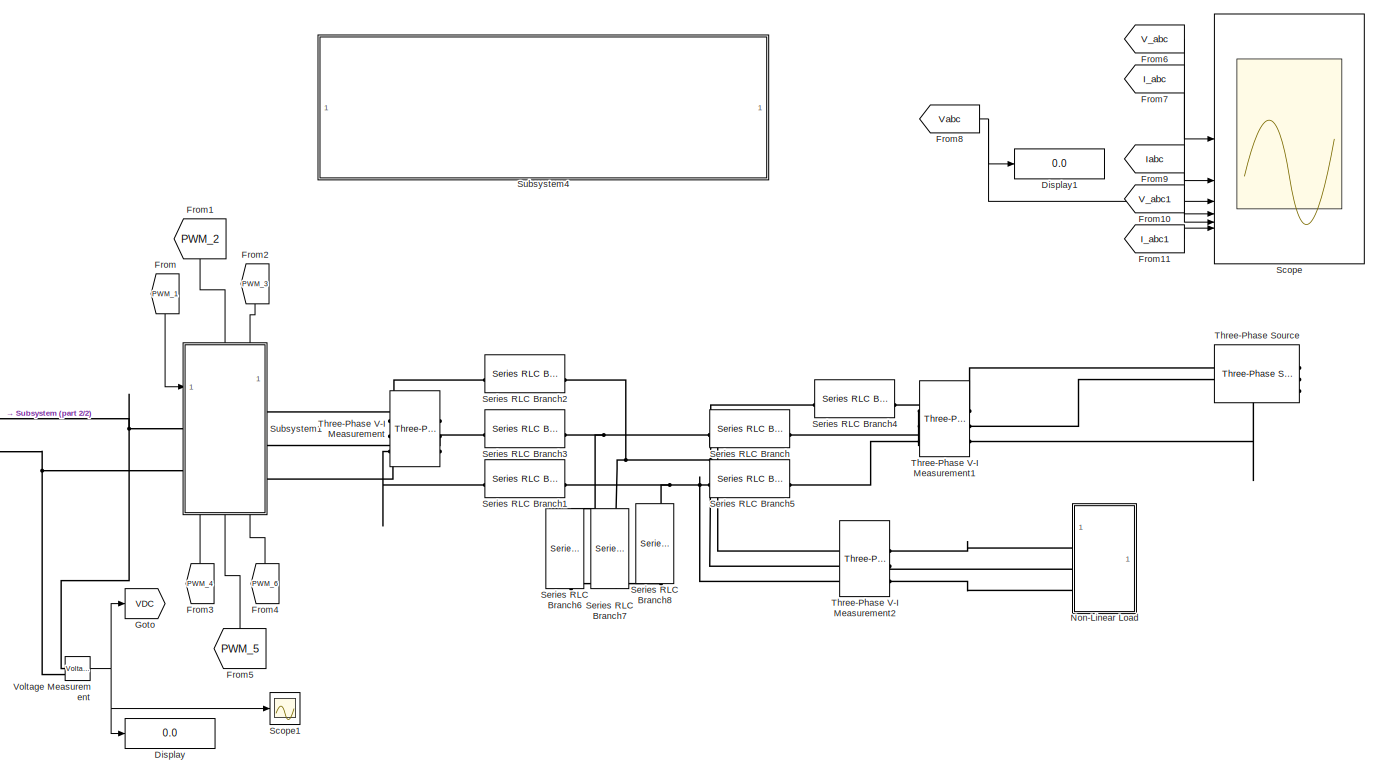
[diagram: root canvas - part 1/2, most of the canvas]
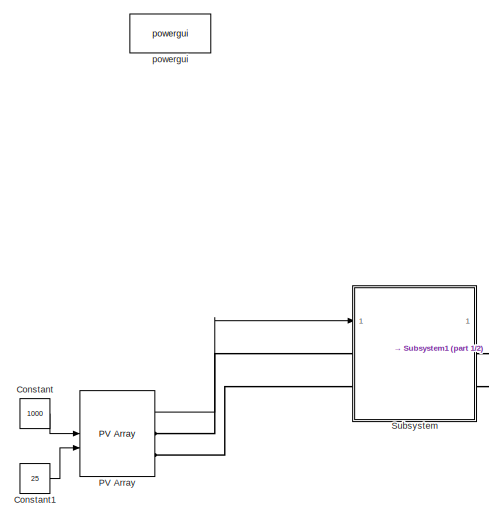
[diagram: root canvas - part 2/2, middle left region]
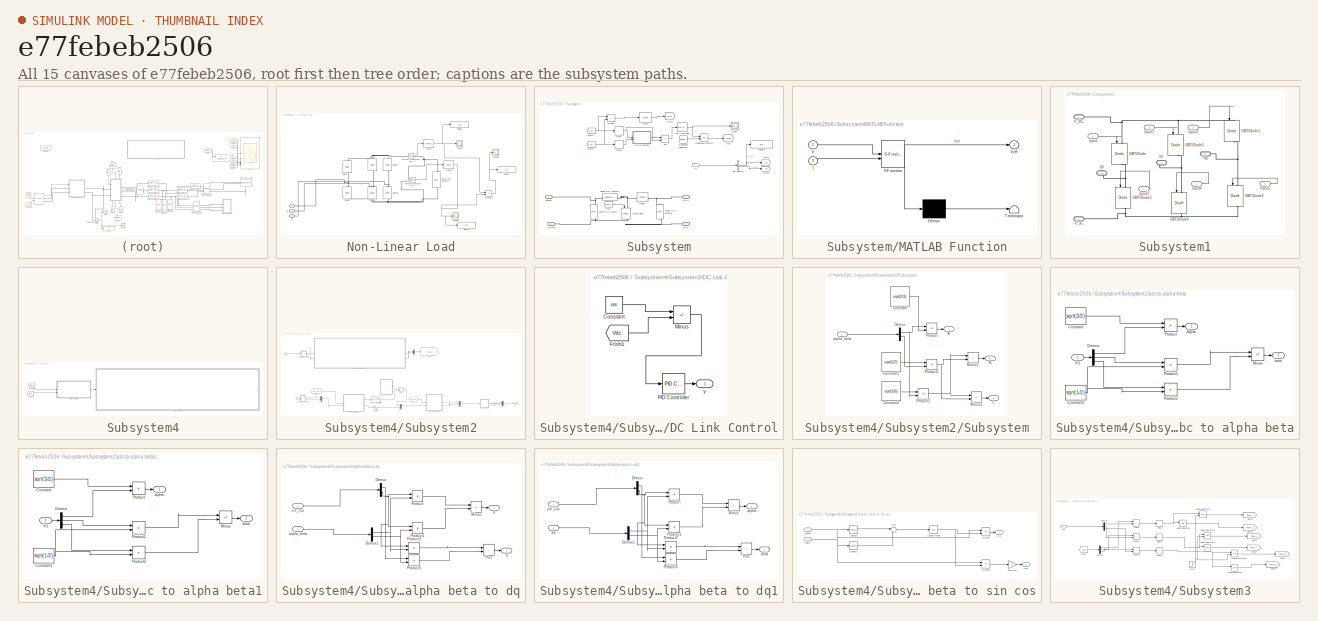
[diagram: thumbnail index - all 15 canvases of the model, root first then tree order]
MODEL slx_e77febeb2506
KIND model
CONFIG AbsTol = auto
CONFIG EnableMultiTasking = off
CONFIG FixedStep = auto
CONFIG MaxStep = auto
CONFIG MinStep = auto
CONFIG RelTol = 1e-3
CONFIG SampleTimeConstraint = Unconstrained
CONFIG SolverName = VariableStepAuto
CONFIG StartTime = 0.0
CONFIG StopTime = 1
BLOCK [Constant] Constant
  Value = 1000
BLOCK [Constant] Constant1
  Value = 25
BLOCK [Display] Display
  Decimation = 1
BLOCK [Display] Display1
  Decimation = 1
BLOCK [From] From
  GotoTag = PWM_1
  NameLocation = left
BLOCK [From] From1
  GotoTag = PWM_2
  NameLocation = left
BLOCK [From] From10
  GotoTag = V_abc1
  TagVisibility = global
BLOCK [From] From11
  GotoTag = I_abc1
  TagVisibility = global
BLOCK [From] From2
  GotoTag = PWM_3
  NameLocation = left
BLOCK [From] From3
  GotoTag = PWM_4
  NameLocation = right
BLOCK [From] From4
  GotoTag = PWM_6
  NameLocation = right
BLOCK [From] From5
  GotoTag = PWM_5
  NameLocation = right
BLOCK [From] From6
  GotoTag = V_abc
  TagVisibility = global
BLOCK [From] From7
  GotoTag = I_abc
  TagVisibility = global
BLOCK [From] From8
  GotoTag = Vabc
  TagVisibility = global
BLOCK [From] From9
  GotoTag = Iabc
  TagVisibility = global
BLOCK [Goto] Goto
  GotoTag = VDC
BLOCK [SubSystem] Non-Linear Load
BLOCK [Reference] Non-Linear Load/Current Measurement  REF=spsCurrentMeasurementLib/Current Measurement
  LibrarySourceBlock = sps_lib/Sensors and Measurements/Current Measurement
  SourceBlock = spsCurrentMeasurementLib/Current Measurement
  SourceType = Current Measurement
  UserDataPersistent = on
BLOCK [Reference] Non-Linear Load/Diode  REF=spsDiodeLib/Diode
  LibrarySourceBlock = sps_lib/Power Electronics/Diode
  NameLocation = right
  SourceBlock = spsDiodeLib/Diode
  SourceType = Diode
BLOCK [Reference] Non-Linear Load/Diode1  REF=spsDiodeLib/Diode
  LibrarySourceBlock = sps_lib/Power Electronics/Diode
  NameLocation = right
  SourceBlock = spsDiodeLib/Diode
  SourceType = Diode
BLOCK [Reference] Non-Linear Load/Diode2  REF=spsDiodeLib/Diode
  LibrarySourceBlock = sps_lib/Power Electronics/Diode
  NameLocation = right
  SourceBlock = spsDiodeLib/Diode
  SourceType = Diode
BLOCK [Reference] Non-Linear Load/Diode3  REF=spsDiodeLib/Diode
  LibrarySourceBlock = sps_lib/Power Electronics/Diode
  NameLocation = right
  SourceBlock = spsDiodeLib/Diode
  SourceType = Diode
BLOCK [Reference] Non-Linear Load/Diode4  REF=spsDiodeLib/Diode
  LibrarySourceBlock = sps_lib/Power Electronics/Diode
  NameLocation = right
  SourceBlock = spsDiodeLib/Diode
  SourceType = Diode
BLOCK [Reference] Non-Linear Load/Diode5  REF=spsDiodeLib/Diode
  LibrarySourceBlock = sps_lib/Power Electronics/Diode
  NameLocation = right
  SourceBlock = spsDiodeLib/Diode
  SourceType = Diode
BLOCK [Display] Non-Linear Load/Display
  Decimation = 1
BLOCK [Display] Non-Linear Load/Display1
  Decimation = 1
BLOCK [Display] Non-Linear Load/Display2
  Decimation = 1
BLOCK [Reference] Non-Linear Load/Mean  REF=spsMeanLib/Mean
  LibrarySourceBlock = sps_lib/Sensors and Measurements/Mean
  SourceBlock = spsMeanLib/Mean
  SourceType = Mean
BLOCK [Reference] Non-Linear Load/Mean1  REF=spsMeanLib/Mean
  LibrarySourceBlock = sps_lib/Sensors and Measurements/Mean
  SourceBlock = spsMeanLib/Mean
  SourceType = Mean
BLOCK [Product] Non-Linear Load/Product1
BLOCK [Scope] Non-Linear Load/Scope
  Floating = off
  NumInputPorts = 1
  ScopeSpecificationString = Simulink.scopes.TimeScopeBlockCfg('CurrentConfiguration', extmgr.ConfigurationSet(extmgr.Configuration('Core','General UI',true),extmgr.Configuration('Core','Source UI',true),extmgr.Configuration('Sources','WiredSimulink',true),extmgr.Configuration('Visuals','Time Domain',true),extmgr.Configuration('Tools','Plot Navigation',true),extmgr.Configuration('Tools','Measurements',true)),'Version','2024a'...<+1ch>
BLOCK [Scope] Non-Linear Load/Scope1
  Floating = off
  NumInputPorts = 1
  ScopeSpecificationString = Simulink.scopes.TimeScopeBlockCfg('CurrentConfiguration', extmgr.ConfigurationSet(extmgr.Configuration('Core','General UI',true),extmgr.Configuration('Core','Source UI',true),extmgr.Configuration('Sources','WiredSimulink',true,'DataLoggingVariableName','ScopeData1'),extmgr.Configuration('Visuals','Time Domain',true),extmgr.Configuration('Tools','Plot Navigation',true),extmgr.Configuration('Tools',...<+40ch>
BLOCK [Scope] Non-Linear Load/Scope2
  Floating = off
  NumInputPorts = 1
  ScopeSpecificationString = Simulink.scopes.TimeScopeBlockCfg('CurrentConfiguration', extmgr.ConfigurationSet(extmgr.Configuration('Core','General UI',true),extmgr.Configuration('Core','Source UI',true),extmgr.Configuration('Sources','WiredSimulink',true,'DataLoggingVariableName','ScopeData2'),extmgr.Configuration('Visuals','Time Domain',true),extmgr.Configuration('Tools','Plot Navigation',true),extmgr.Configuration('Tools',...<+40ch>
BLOCK [Reference] Non-Linear Load/Series RLC Branch9  REF=spsSeriesRLCBranchLib/Series RLC Branch
  LibrarySourceBlock = sps_lib/Passives/Series RLC Branch
  NameLocation = left
  SourceBlock = spsSeriesRLCBranchLib/Series RLC Branch
  SourceType = Series RLC Branch
BLOCK [Reference] Non-Linear Load/Voltage Measurement1  REF=spsVoltageMeasurementLib/Voltage Measurement
  LibrarySourceBlock = sps_lib/Sensors and Measurements/Voltage Measurement
  SourceBlock = spsVoltageMeasurementLib/Voltage Measurement
  SourceType = Voltage Measurement
  UserDataPersistent = on
BLOCK [PMIOPort] Non-Linear Load/a
  Side = Left
BLOCK [PMIOPort] Non-Linear Load/a1
  Port = 2
  Side = Left
BLOCK [PMIOPort] Non-Linear Load/a2
  Port = 3
  Side = Left
BLOCK [Reference] PV Array  REF=spsPVArrayLib/PV Array
  LibrarySourceBlock = sps_lib/Sources/PV Array
  SourceBlock = spsPVArrayLib/PV Array
  SourceType = PV array
BLOCK [Scope] Scope
  Floating = off
  NumInputPorts = 6
  ScopeSpecificationString = Simulink.scopes.TimeScopeBlockCfg('CurrentConfiguration', extmgr.ConfigurationSet(extmgr.Configuration('Core','General UI',true),extmgr.Configuration('Core','Source UI',true),extmgr.Configuration('Sources','WiredSimulink',true,'DataLoggingVariableName','ScopeData1'),extmgr.Configuration('Visuals','Time Domain',true,'SerializedDisplays',{struct('MinYLimReal','-0.00015','MaxYLimReal','0.00015','YLab...<+5670ch>
BLOCK [Scope] Scope1
  Floating = off
  NumInputPorts = 1
  ScopeSpecificationString = Simulink.scopes.TimeScopeBlockCfg('CurrentConfiguration', extmgr.ConfigurationSet(extmgr.Configuration('Core','General UI',true),extmgr.Configuration('Core','Source UI',true),extmgr.Configuration('Sources','WiredSimulink',true,'DataLoggingVariableName','ScopeData2'),extmgr.Configuration('Visuals','Time Domain',true,'SerializedDisplays',{struct('MinYLimReal','-777.48501','MaxYLimReal','6997.36512',...<+1539ch>
BLOCK [Reference] Series RLC Branch  REF=spsSeriesRLCBranchLib/Series RLC Branch
  LibrarySourceBlock = sps_lib/Passives/Series RLC Branch
  SourceBlock = spsSeriesRLCBranchLib/Series RLC Branch
  SourceType = Series RLC Branch
BLOCK [Reference] Series RLC Branch1  REF=spsSeriesRLCBranchLib/Series RLC Branch
  LibrarySourceBlock = sps_lib/Passives/Series RLC Branch
  SourceBlock = spsSeriesRLCBranchLib/Series RLC Branch
  SourceType = Series RLC Branch
BLOCK [Reference] Series RLC Branch2  REF=spsSeriesRLCBranchLib/Series RLC Branch
  LibrarySourceBlock = sps_lib/Passives/Series RLC Branch
  SourceBlock = spsSeriesRLCBranchLib/Series RLC Branch
  SourceType = Series RLC Branch
BLOCK [Reference] Series RLC Branch3  REF=spsSeriesRLCBranchLib/Series RLC Branch
  LibrarySourceBlock = sps_lib/Passives/Series RLC Branch
  SourceBlock = spsSeriesRLCBranchLib/Series RLC Branch
  SourceType = Series RLC Branch
BLOCK [Reference] Series RLC Branch4  REF=spsSeriesRLCBranchLib/Series RLC Branch
  LibrarySourceBlock = sps_lib/Passives/Series RLC Branch
  SourceBlock = spsSeriesRLCBranchLib/Series RLC Branch
  SourceType = Series RLC Branch
BLOCK [Reference] Series RLC Branch5  REF=spsSeriesRLCBranchLib/Series RLC Branch
  LibrarySourceBlock = sps_lib/Passives/Series RLC Branch
  SourceBlock = spsSeriesRLCBranchLib/Series RLC Branch
  SourceType = Series RLC Branch
BLOCK [Reference] Series RLC Branch6  REF=spsSeriesRLCBranchLib/Series RLC Branch
  LibrarySourceBlock = sps_lib/Passives/Series RLC Branch
  NameLocation = left
  SourceBlock = spsSeriesRLCBranchLib/Series RLC Branch
  SourceType = Series RLC Branch
BLOCK [Reference] Series RLC Branch7  REF=spsSeriesRLCBranchLib/Series RLC Branch
  LibrarySourceBlock = sps_lib/Passives/Series RLC Branch
  NameLocation = left
  SourceBlock = spsSeriesRLCBranchLib/Series RLC Branch
  SourceType = Series RLC Branch
BLOCK [Reference] Series RLC Branch8  REF=spsSeriesRLCBranchLib/Series RLC Branch
  LibrarySourceBlock = sps_lib/Passives/Series RLC Branch
  NameLocation = left
  SourceBlock = spsSeriesRLCBranchLib/Series RLC Branch
  SourceType = Series RLC Branch
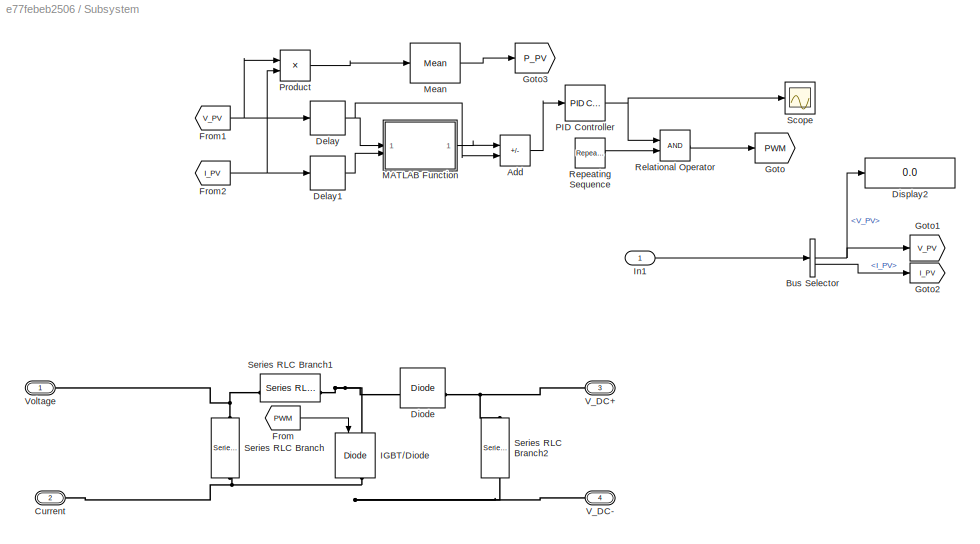
BLOCK [SubSystem] Subsystem
BLOCK [Sum] Subsystem/Add
  IconShape = rectangular
  Inputs = -+
BLOCK [BusSelector] Subsystem/Bus Selector
  OutputSignals = V_PV,I_PV
BLOCK [PMIOPort] Subsystem/Current
  Port = 2
  Side = Left
BLOCK [Delay] Subsystem/Delay
  DelayLength = 1
  InitialCondition = 0
  InputPortMap = u0
BLOCK [Delay] Subsystem/Delay1
  DelayLength = 1
  InitialCondition = 0
  InputPortMap = u0
BLOCK [Reference] Subsystem/Diode  REF=spsDiodeLib/Diode
  LibrarySourceBlock = sps_lib/Power Electronics/Diode
  SourceBlock = spsDiodeLib/Diode
  SourceType = Diode
BLOCK [Display] Subsystem/Display2
  Decimation = 1
  NameLocation = top
BLOCK [From] Subsystem/From
  GotoTag = PWM
BLOCK [From] Subsystem/From1
  GotoTag = V_PV
BLOCK [From] Subsystem/From2
  GotoTag = I_PV
BLOCK [Goto] Subsystem/Goto
  GotoTag = PWM
BLOCK [Goto] Subsystem/Goto1
  GotoTag = V_PV
BLOCK [Goto] Subsystem/Goto2
  GotoTag = I_PV
BLOCK [Goto] Subsystem/Goto3
  GotoTag = P_PV
BLOCK [Reference] Subsystem/IGBT//Diode  REF=spsIGBTDiodeLib/IGBT//Diode
  LibrarySourceBlock = sps_lib/Power Electronics/IGBT//Diode
  NameLocation = left
  SourceBlock = spsIGBTDiodeLib/IGBT//Diode
  SourceType = IGBT/Diode
BLOCK [Inport] Subsystem/In1
BLOCK [SubSystem] Subsystem/MATLAB Function
  ErrorFcn = Stateflow.Translate.translate
  PermitHierarchicalResolution = ExplicitOnly
  SFBlockType = MATLAB Function
  TreatAsAtomicUnit = on
BLOCK [Demux] Subsystem/MATLAB Function/ Demux 
  Outputs = 1
BLOCK [S-Function] Subsystem/MATLAB Function/ SFunction 
  EnableBusSupport = on
  FunctionName = sf_sfun
  PortCounts = [2 2]
  SFcnIsStateOwnerBlock = off
  SFunctionDeploymentMode = off
  Tag = Stateflow S-Function 2
BLOCK [Terminator] Subsystem/MATLAB Function/ Terminator 
BLOCK [Inport] Subsystem/MATLAB Function/I
  Port = 2
BLOCK [Inport] Subsystem/MATLAB Function/V
BLOCK [Outport] Subsystem/MATLAB Function/Vref
  VectorParamsAs1DForOutWhenUnconnected = off
BLOCK [Reference] Subsystem/Mean  REF=spsMeanLib/Mean
  LibrarySourceBlock = sps_lib/Sensors and Measurements/Mean
  SourceBlock = spsMeanLib/Mean
  SourceType = Mean
BLOCK [Reference] Subsystem/PID Controller  REF=slpidlib/PID Controller
  SourceBlock = slpidlib/PID Controller
  SourceType = PID 1dof
BLOCK [Product] Subsystem/Product
BLOCK [RelationalOperator] Subsystem/Relational Operator
  InputSameDT = off
  OutDataTypeStr = boolean
  RndMeth = Simplest
BLOCK [Reference] Subsystem/Repeating Sequence  REF=simulink/Sources/Repeating
Sequence
  SourceBlock = simulink/Sources/Repeating\nSequence
  SourceType = Repeating table
BLOCK [Scope] Subsystem/Scope
  Floating = off
  NumInputPorts = 1
  ScopeSpecificationString = Simulink.scopes.TimeScopeBlockCfg('CurrentConfiguration', extmgr.ConfigurationSet(extmgr.Configuration('Core','General UI',true),extmgr.Configuration('Core','Source UI',true),extmgr.Configuration('Sources','WiredSimulink',true,'DataLoggingVariableName','ScopeData3'),extmgr.Configuration('Visuals','Time Domain',true,'SerializedDisplays',{struct('MinYLimReal','-0.11875','MaxYLimReal','1.06875','YLab...<+1533ch>
BLOCK [Reference] Subsystem/Series RLC Branch  REF=spsSeriesRLCBranchLib/Series RLC Branch
  LibrarySourceBlock = sps_lib/Passives/Series RLC Branch
  NameLocation = left
  SourceBlock = spsSeriesRLCBranchLib/Series RLC Branch
  SourceType = Series RLC Branch
BLOCK [Reference] Subsystem/Series RLC Branch1  REF=spsSeriesRLCBranchLib/Series RLC Branch
  LibrarySourceBlock = sps_lib/Passives/Series RLC Branch
  NameLocation = top
  SourceBlock = spsSeriesRLCBranchLib/Series RLC Branch
  SourceType = Series RLC Branch
BLOCK [Reference] Subsystem/Series RLC Branch2  REF=spsSeriesRLCBranchLib/Series RLC Branch
  LibrarySourceBlock = sps_lib/Passives/Series RLC Branch
  NameLocation = left
  SourceBlock = spsSeriesRLCBranchLib/Series RLC Branch
  SourceType = Series RLC Branch
BLOCK [PMIOPort] Subsystem/V_DC+
  NameLocation = top
  Port = 3
  Side = Right
BLOCK [PMIOPort] Subsystem/V_DC-
  NameLocation = top
  Port = 4
  Side = Right
BLOCK [PMIOPort] Subsystem/Voltage
  Side = Left
BLOCK [SubSystem] Subsystem1
  PortSchema = {"entries":[{"content":{"sides":[{"content":{"connectorIds":["LConn1","LConn2"]},"type":"ConnectorPlacement.EquallySpacedRectSide","uuid":"a2a7ddac-ae87-4c1a-8b74-688f39786139"},{"content":{"connectorIds":["RConn1","RConn2","RConn3"],"side":"RIGHT"},"type":"ConnectorPlacement.EquallySpacedRectSide","uuid":"0ffaccab-b326-455c-8204-264bcaba31f0"},{"content":{"connectorIds":["In1","In2","In3"],"side"...<+450ch>
BLOCK [Reference] Subsystem1/IGBT//Diode  REF=spsIGBTDiodeLib/IGBT//Diode
  LibrarySourceBlock = sps_lib/Power Electronics/IGBT//Diode
  NameLocation = left
  SourceBlock = spsIGBTDiodeLib/IGBT//Diode
  SourceType = IGBT/Diode
BLOCK [Reference] Subsystem1/IGBT//Diode1  REF=spsIGBTDiodeLib/IGBT//Diode
  LibrarySourceBlock = sps_lib/Power Electronics/IGBT//Diode
  NameLocation = left
  SourceBlock = spsIGBTDiodeLib/IGBT//Diode
  SourceType = IGBT/Diode
BLOCK [Reference] Subsystem1/IGBT//Diode2  REF=spsIGBTDiodeLib/IGBT//Diode
  LibrarySourceBlock = sps_lib/Power Electronics/IGBT//Diode
  NameLocation = left
  SourceBlock = spsIGBTDiodeLib/IGBT//Diode
  SourceType = IGBT/Diode
BLOCK [Reference] Subsystem1/IGBT//Diode3  REF=spsIGBTDiodeLib/IGBT//Diode
  LibrarySourceBlock = sps_lib/Power Electronics/IGBT//Diode
  NameLocation = left
  SourceBlock = spsIGBTDiodeLib/IGBT//Diode
  SourceType = IGBT/Diode
BLOCK [Reference] Subsystem1/IGBT//Diode4  REF=spsIGBTDiodeLib/IGBT//Diode
  LibrarySourceBlock = sps_lib/Power Electronics/IGBT//Diode
  NameLocation = left
  SourceBlock = spsIGBTDiodeLib/IGBT//Diode
  SourceType = IGBT/Diode
BLOCK [Reference] Subsystem1/IGBT//Diode5  REF=spsIGBTDiodeLib/IGBT//Diode
  LibrarySourceBlock = sps_lib/Power Electronics/IGBT//Diode
  NameLocation = left
  SourceBlock = spsIGBTDiodeLib/IGBT//Diode
  SourceType = IGBT/Diode
BLOCK [Inport] Subsystem1/Input
BLOCK [Inport] Subsystem1/Input1
  Port = 2
BLOCK [Inport] Subsystem1/Input2
  Port = 3
BLOCK [Inport] Subsystem1/Input3
  Port = 4
BLOCK [Inport] Subsystem1/Input4
  Port = 6
BLOCK [Inport] Subsystem1/Input5
  Port = 5
BLOCK [PMIOPort] Subsystem1/VB
  Port = 5
  Side = Right
BLOCK [PMIOPort] Subsystem1/VR
  Port = 3
  Side = Right
BLOCK [PMIOPort] Subsystem1/VY
  Port = 4
  Side = Right
BLOCK [PMIOPort] Subsystem1/V_DC+
  Side = Left
BLOCK [PMIOPort] Subsystem1/V_DC-
  Port = 2
  Side = Left
BLOCK [SubSystem] Subsystem4
BLOCK [From] Subsystem4/From6
  GotoTag = Vabc
  TagVisibility = global
BLOCK [From] Subsystem4/From7
  GotoTag = Iabc
  TagVisibility = global
BLOCK [SubSystem] Subsystem4/Subsystem2
BLOCK [SubSystem] Subsystem4/Subsystem2/DC Link Control
BLOCK [Constant] Subsystem4/Subsystem2/DC Link Control/Constant
  Value = 686
BLOCK [From] Subsystem4/Subsystem2/DC Link Control/From1
  GotoTag = Vdc
BLOCK [Sum] Subsystem4/Subsystem2/DC Link Control/Minus
  IconShape = rectangular
  Inputs = +-
BLOCK [Reference] Subsystem4/Subsystem2/DC Link Control/PID Controller  REF=slpidlib/PID Controller
  LibrarySourceBlock = simulink/Continuous/PID Controller
  SourceBlock = slpidlib/PID Controller
  SourceType = PID 1dof
BLOCK [Outport] Subsystem4/Subsystem2/DC Link Control/y
BLOCK [From] Subsystem4/Subsystem2/From
  GotoTag = sin_cos
BLOCK [From] Subsystem4/Subsystem2/From1
  GotoTag = sin_cos
BLOCK [Goto] Subsystem4/Subsystem2/Goto
  GotoTag = sin_cos
BLOCK [Inport] Subsystem4/Subsystem2/Is
  Port = 2
BLOCK [Outport] Subsystem4/Subsystem2/Is*
BLOCK [Sum] Subsystem4/Subsystem2/Minus
  IconShape = rectangular
  Inputs = +-
BLOCK [Gain] Subsystem4/Subsystem2/Multiply
  Gain = 0
BLOCK [Mux] Subsystem4/Subsystem2/Mux
  DisplayOption = bar
  Inputs = 2
BLOCK [Mux] Subsystem4/Subsystem2/Mux1
  DisplayOption = bar
  Inputs = 2
BLOCK [Mux] Subsystem4/Subsystem2/Mux2
  DisplayOption = bar
  Inputs = 2
BLOCK [Mux] Subsystem4/Subsystem2/Mux3
  DisplayOption = bar
  Inputs = 2
BLOCK [Mux] Subsystem4/Subsystem2/Mux4
  DisplayOption = bar
  Inputs = 3
BLOCK [Reference] Subsystem4/Subsystem2/Second-Order Filter  REF=eeGeneralControl/Second-Order Filter
  LibrarySourceBlock = ee_sl_lib/General Control/Second-Order Filter
  SourceBlock = eeGeneralControl/Second-Order Filter
  SourceType = Second-Order Filter
BLOCK [SubSystem] Subsystem4/Subsystem2/Subsystem
BLOCK [Outport] Subsystem4/Subsystem2/Subsystem/A
BLOCK [Outport] Subsystem4/Subsystem2/Subsystem/B
  Port = 2
BLOCK [Outport] Subsystem4/Subsystem2/Subsystem/C
  Port = 3
BLOCK [Constant] Subsystem4/Subsystem2/Subsystem/Constant
  Value = sqrt(2/3)
BLOCK [Constant] Subsystem4/Subsystem2/Subsystem/Constant1
  Value = sqrt(1/2)
BLOCK [Constant] Subsystem4/Subsystem2/Subsystem/Constant2
  Value = sqrt(1/6)
BLOCK [Demux] Subsystem4/Subsystem2/Subsystem/Demux
  Outputs = 2
BLOCK [Sum] Subsystem4/Subsystem2/Subsystem/Minus1
  IconShape = rectangular
  Inputs = --
BLOCK [Sum] Subsystem4/Subsystem2/Subsystem/Minus2
  IconShape = rectangular
  Inputs = -+
BLOCK [Product] Subsystem4/Subsystem2/Subsystem/Product
BLOCK [Product] Subsystem4/Subsystem2/Subsystem/Product1
BLOCK [Product] Subsystem4/Subsystem2/Subsystem/Product2
BLOCK [Inport] Subsystem4/Subsystem2/Subsystem/alpha_beta
BLOCK [SubSystem] Subsystem4/Subsystem2/abc to alpha beta
BLOCK [Constant] Subsystem4/Subsystem2/abc to alpha beta/Constant
  Value = sqrt(3/2)
BLOCK [Constant] Subsystem4/Subsystem2/abc to alpha beta/Constant1
  Value = sqrt(1/2)
BLOCK [Demux] Subsystem4/Subsystem2/abc to alpha beta/Demux
  Outputs = 3
BLOCK [Inport] Subsystem4/Subsystem2/abc to alpha beta/In1
BLOCK [Sum] Subsystem4/Subsystem2/abc to alpha beta/Minus
  IconShape = rectangular
  Inputs = +-
BLOCK [Product] Subsystem4/Subsystem2/abc to alpha beta/Product
BLOCK [Product] Subsystem4/Subsystem2/abc to alpha beta/Product1
BLOCK [Product] Subsystem4/Subsystem2/abc to alpha beta/Product2
BLOCK [Outport] Subsystem4/Subsystem2/abc to alpha beta/alpha
BLOCK [Outport] Subsystem4/Subsystem2/abc to alpha beta/beta
  Port = 2
BLOCK [SubSystem] Subsystem4/Subsystem2/abc to alpha beta1
BLOCK [Constant] Subsystem4/Subsystem2/abc to alpha beta1/Constant
  Value = sqrt(3/2)
BLOCK [Constant] Subsystem4/Subsystem2/abc to alpha beta1/Constant1
  Value = sqrt(1/2)
BLOCK [Demux] Subsystem4/Subsystem2/abc to alpha beta1/Demux
  Outputs = 3
BLOCK [Inport] Subsystem4/Subsystem2/abc to alpha beta1/In1
BLOCK [Sum] Subsystem4/Subsystem2/abc to alpha beta1/Minus
  IconShape = rectangular
  Inputs = +-
BLOCK [Product] Subsystem4/Subsystem2/abc to alpha beta1/Product
BLOCK [Product] Subsystem4/Subsystem2/abc to alpha beta1/Product1
BLOCK [Product] Subsystem4/Subsystem2/abc to alpha beta1/Product2
BLOCK [Outport] Subsystem4/Subsystem2/abc to alpha beta1/alpha
BLOCK [Outport] Subsystem4/Subsystem2/abc to alpha beta1/beta
  Port = 2
BLOCK [SubSystem] Subsystem4/Subsystem2/alpha beta to dq
BLOCK [Demux] Subsystem4/Subsystem2/alpha beta to dq/Demux
  Outputs = 2
BLOCK [Demux] Subsystem4/Subsystem2/alpha beta to dq/Demux1
  Outputs = 2
BLOCK [Sum] Subsystem4/Subsystem2/alpha beta to dq/Minus
  IconShape = rectangular
  Inputs = +-
BLOCK [Sum] Subsystem4/Subsystem2/alpha beta to dq/Plus
  IconShape = rectangular
BLOCK [Product] Subsystem4/Subsystem2/alpha beta to dq/Product
BLOCK [Product] Subsystem4/Subsystem2/alpha beta to dq/Product1
BLOCK [Product] Subsystem4/Subsystem2/alpha beta to dq/Product2
BLOCK [Product] Subsystem4/Subsystem2/alpha beta to dq/Product3
BLOCK [Inport] Subsystem4/Subsystem2/alpha beta to dq/alpha_beta
  Port = 2
BLOCK [Outport] Subsystem4/Subsystem2/alpha beta to dq/d
BLOCK [Outport] Subsystem4/Subsystem2/alpha beta to dq/q
  Port = 2
BLOCK [Inport] Subsystem4/Subsystem2/alpha beta to dq/sin_cos
BLOCK [SubSystem] Subsystem4/Subsystem2/alpha beta to dq1
BLOCK [Demux] Subsystem4/Subsystem2/alpha beta to dq1/Demux
  Outputs = 2
BLOCK [Demux] Subsystem4/Subsystem2/alpha beta to dq1/Demux1
  Outputs = 2
BLOCK [Sum] Subsystem4/Subsystem2/alpha beta to dq1/Minus
  IconShape = rectangular
BLOCK [Sum] Subsystem4/Subsystem2/alpha beta to dq1/Plus
  IconShape = rectangular
  Inputs = -+
BLOCK [Product] Subsystem4/Subsystem2/alpha beta to dq1/Product
BLOCK [Product] Subsystem4/Subsystem2/alpha beta to dq1/Product1
BLOCK [Product] Subsystem4/Subsystem2/alpha beta to dq1/Product2
BLOCK [Product] Subsystem4/Subsystem2/alpha beta to dq1/Product3
BLOCK [Outport] Subsystem4/Subsystem2/alpha beta to dq1/alpha
BLOCK [Outport] Subsystem4/Subsystem2/alpha beta to dq1/beta
  Port = 2
BLOCK [Inport] Subsystem4/Subsystem2/alpha beta to dq1/dq
  Port = 2
BLOCK [Inport] Subsystem4/Subsystem2/alpha beta to dq1/sin_cos
BLOCK [SubSystem] Subsystem4/Subsystem2/alpha beta to sin cos
BLOCK [Outport] Subsystem4/Subsystem2/alpha beta to sin cos/Cos
  Port = 2
BLOCK [Product] Subsystem4/Subsystem2/alpha beta to sin cos/Divide
  Inputs = */
BLOCK [Product] Subsystem4/Subsystem2/alpha beta to sin cos/Divide1
  Inputs = */
BLOCK [Gain] Subsystem4/Subsystem2/alpha beta to sin cos/Multiply
  Gain = -1
BLOCK [Outport] Subsystem4/Subsystem2/alpha beta to sin cos/Sin
BLOCK [Math] Subsystem4/Subsystem2/alpha beta to sin cos/Square
  Operator = square
BLOCK [Sqrt] Subsystem4/Subsystem2/alpha beta to sin cos/Square Root
BLOCK [Math] Subsystem4/Subsystem2/alpha beta to sin cos/Square1
  Operator = square
BLOCK [Sum] Subsystem4/Subsystem2/alpha beta to sin cos/Sum
  Inputs = |++
BLOCK [Inport] Subsystem4/Subsystem2/alpha beta to sin cos/alpha
BLOCK [Inport] Subsystem4/Subsystem2/alpha beta to sin cos/beta
  Port = 2
BLOCK [Inport] Subsystem4/Subsystem2/vs
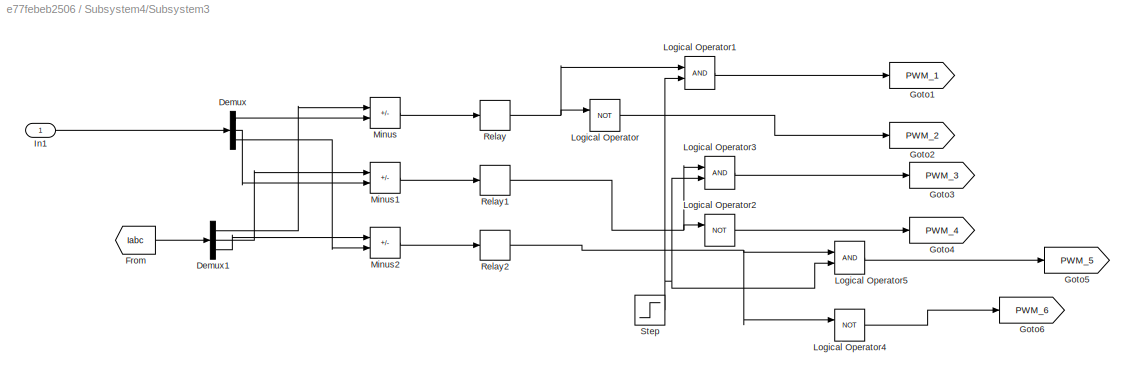
BLOCK [SubSystem] Subsystem4/Subsystem3
BLOCK [Demux] Subsystem4/Subsystem3/Demux
  Outputs = 3
BLOCK [Demux] Subsystem4/Subsystem3/Demux1
  Outputs = 3
BLOCK [From] Subsystem4/Subsystem3/From
  GotoTag = Iabc
  TagVisibility = global
BLOCK [Goto] Subsystem4/Subsystem3/Goto1
  GotoTag = PWM_1
BLOCK [Goto] Subsystem4/Subsystem3/Goto2
  GotoTag = PWM_2
BLOCK [Goto] Subsystem4/Subsystem3/Goto3
  GotoTag = PWM_3
BLOCK [Goto] Subsystem4/Subsystem3/Goto4
  GotoTag = PWM_4
BLOCK [Goto] Subsystem4/Subsystem3/Goto5
  GotoTag = PWM_5
BLOCK [Goto] Subsystem4/Subsystem3/Goto6
  GotoTag = PWM_6
BLOCK [Inport] Subsystem4/Subsystem3/In1
BLOCK [Logic] Subsystem4/Subsystem3/Logical Operator
  AllPortsSameDT = off
  Operator = NOT
  OutDataTypeStr = boolean
BLOCK [Logic] Subsystem4/Subsystem3/Logical Operator1
  AllPortsSameDT = off
  OutDataTypeStr = boolean
BLOCK [Logic] Subsystem4/Subsystem3/Logical Operator2
  AllPortsSameDT = off
  Operator = NOT
  OutDataTypeStr = boolean
BLOCK [Logic] Subsystem4/Subsystem3/Logical Operator3
  AllPortsSameDT = off
  OutDataTypeStr = boolean
BLOCK [Logic] Subsystem4/Subsystem3/Logical Operator4
  AllPortsSameDT = off
  Operator = NOT
  OutDataTypeStr = boolean
BLOCK [Logic] Subsystem4/Subsystem3/Logical Operator5
  AllPortsSameDT = off
  OutDataTypeStr = boolean
BLOCK [Sum] Subsystem4/Subsystem3/Minus
  IconShape = rectangular
  Inputs = +-
BLOCK [Sum] Subsystem4/Subsystem3/Minus1
  IconShape = rectangular
  Inputs = +-
BLOCK [Sum] Subsystem4/Subsystem3/Minus2
  IconShape = rectangular
  Inputs = +-
BLOCK [Relay] Subsystem4/Subsystem3/Relay
  OffSwitchValue = -0.5
  OnSwitchValue = 0.5
BLOCK [Relay] Subsystem4/Subsystem3/Relay1
  OffSwitchValue = -0.5
  OnSwitchValue = 0.5
BLOCK [Relay] Subsystem4/Subsystem3/Relay2
  OffSwitchValue = -0.5
  OnSwitchValue = 0.5
BLOCK [Step] Subsystem4/Subsystem3/Step
  SampleTime = 0
BLOCK [Reference] Three-Phase Source  REF=spsThreePhaseSourceLib/Three-Phase Source
  LibrarySourceBlock = sps_lib/Sources/Three-Phase Source
  NameLocation = top
  SourceBlock = spsThreePhaseSourceLib/Three-Phase Source
  SourceType = Three-Phase Source
BLOCK [Reference] Three-Phase V-I Measurement  REF=spsThreePhaseVIMeasurementLib/Three-Phase
V-I Measurement
  LibrarySourceBlock = sps_lib/Sensors and Measurements/Three-Phase\nV-I Measurement
  NameLocation = top
  SourceBlock = spsThreePhaseVIMeasurementLib/Three-Phase\nV-I Measurement
  SourceType = Three-Phase VI Measurement
BLOCK [Reference] Three-Phase V-I Measurement1  REF=spsThreePhaseVIMeasurementLib/Three-Phase
V-I Measurement
  LibrarySourceBlock = sps_lib/Sensors and Measurements/Three-Phase\nV-I Measurement
  SourceBlock = spsThreePhaseVIMeasurementLib/Three-Phase\nV-I Measurement
  SourceType = Three-Phase VI Measurement
BLOCK [Reference] Three-Phase V-I Measurement2  REF=spsThreePhaseVIMeasurementLib/Three-Phase
V-I Measurement
  LibrarySourceBlock = sps_lib/Sensors and Measurements/Three-Phase\nV-I Measurement
  SourceBlock = spsThreePhaseVIMeasurementLib/Three-Phase\nV-I Measurement
  SourceType = Three-Phase VI Measurement
BLOCK [Reference] Voltage Measurement  REF=spsVoltageMeasurementLib/Voltage Measurement
  LibrarySourceBlock = sps_lib/Sensors and Measurements/Voltage Measurement
  SourceBlock = spsVoltageMeasurementLib/Voltage Measurement
  SourceType = Voltage Measurement
  UserDataPersistent = on
BLOCK [Reference] powergui  REF=spspowerguiLib/powergui
  LibrarySourceBlock = sps_lib/powergui
  Priority = 1
  SourceBlock = spspowerguiLib/powergui
  SourceType = PSB option menu block
LINE Constant1:1 -> PV Array:2
LINE Constant:1 -> PV Array:1
LINE From10:1 -> Scope:5
LINE From11:1 -> Scope:6
LINE From1:1 -> Subsystem1:2
LINE From2:1 -> Subsystem1:3
LINE From3:1 -> Subsystem1:4
LINE From4:1 -> Subsystem1:6
LINE From5:1 -> Subsystem1:5
LINE From6:1 -> Scope:1
LINE From7:1 -> Scope:2
NET From8:1 -> Display1:1, Scope:3
LINE From9:1 -> Scope:4
LINE From:1 -> Subsystem1:1
LINE Non-Linear Load/Current Measurement:1 -> Non-Linear Load/Mean:1
NET Non-Linear Load/Mean1:1 -> Non-Linear Load/Display1:1, Non-Linear Load/Product1:2, Non-Linear Load/Scope1:1
NET Non-Linear Load/Mean:1 -> Non-Linear Load/Display:1, Non-Linear Load/Product1:1, Non-Linear Load/Scope:1
NET Non-Linear Load/Product1:1 -> Non-Linear Load/Display2:1, Non-Linear Load/Scope2:1
LINE Non-Linear Load/Voltage Measurement1:1 -> Non-Linear Load/Mean1:1
LINE PV Array:1 -> Subsystem:1
LINE Subsystem/Add:1 -> Subsystem/PID Controller:1
NET Subsystem/Bus Selector:1 -> Subsystem/Display2:1, Subsystem/Goto1:1
LINE Subsystem/Bus Selector:2 -> Subsystem/Goto2:1
LINE Subsystem/Delay1:1 -> Subsystem/MATLAB Function:2
NET Subsystem/Delay:1 -> Subsystem/Add:2, Subsystem/MATLAB Function:1
NET Subsystem/From1:1 -> Subsystem/Delay:1, Subsystem/Product:1
NET Subsystem/From2:1 -> Subsystem/Delay1:1, Subsystem/Product:2
LINE Subsystem/From:1 -> Subsystem/IGBT//Diode:1
LINE Subsystem/In1:1 -> Subsystem/Bus Selector:1
LINE Subsystem/MATLAB Function:1 -> Subsystem/Add:1
LINE Subsystem/Mean:1 -> Subsystem/Goto3:1
NET Subsystem/PID Controller:1 -> Subsystem/Relational Operator:1, Subsystem/Scope:1
LINE Subsystem/Product:1 -> Subsystem/Mean:1
LINE Subsystem/Relational Operator:1 -> Subsystem/Goto:1
LINE Subsystem/Repeating Sequence:1 -> Subsystem/Relational Operator:2
LINE Subsystem1/Input1:1 -> Subsystem1/IGBT//Diode5:1
LINE Subsystem1/Input2:1 -> Subsystem1/IGBT//Diode1:1
LINE Subsystem1/Input3:1 -> Subsystem1/IGBT//Diode3:1
LINE Subsystem1/Input4:1 -> Subsystem1/IGBT//Diode4:1
LINE Subsystem1/Input5:1 -> Subsystem1/IGBT//Diode2:1
LINE Subsystem1/Input:1 -> Subsystem1/IGBT//Diode:1
LINE Subsystem4/From6:1 -> Subsystem4/Subsystem2:1
LINE Subsystem4/From7:1 -> Subsystem4/Subsystem2:2
LINE Subsystem4/Subsystem2/DC Link Control/Constant:1 -> Subsystem4/Subsystem2/DC Link Control/Minus:1
LINE Subsystem4/Subsystem2/DC Link Control/From1:1 -> Subsystem4/Subsystem2/DC Link Control/Minus:2
LINE Subsystem4/Subsystem2/DC Link Control/Minus:1 -> Subsystem4/Subsystem2/DC Link Control/PID Controller:1
LINE Subsystem4/Subsystem2/DC Link Control/PID Controller:1 -> Subsystem4/Subsystem2/DC Link Control/y:1
LINE Subsystem4/Subsystem2/DC Link Control:1 -> Subsystem4/Subsystem2/Minus:1
LINE Subsystem4/Subsystem2/From1:1 -> Subsystem4/Subsystem2/alpha beta to dq1:1
LINE Subsystem4/Subsystem2/From:1 -> Subsystem4/Subsystem2/alpha beta to dq:1
LINE Subsystem4/Subsystem2/Is:1 -> Subsystem4/Subsystem2/abc to alpha beta1:1
LINE Subsystem4/Subsystem2/Minus:1 -> Subsystem4/Subsystem2/Mux2:1
LINE Subsystem4/Subsystem2/Multiply:1 -> Subsystem4/Subsystem2/Mux2:2
LINE Subsystem4/Subsystem2/Mux1:1 -> Subsystem4/Subsystem2/alpha beta to dq:2
LINE Subsystem4/Subsystem2/Mux2:1 -> Subsystem4/Subsystem2/alpha beta to dq1:2
LINE Subsystem4/Subsystem2/Mux3:1 -> Subsystem4/Subsystem2/Subsystem:1
LINE Subsystem4/Subsystem2/Mux4:1 -> Subsystem4/Subsystem2/Is*:1
LINE Subsystem4/Subsystem2/Mux:1 -> Subsystem4/Subsystem2/Goto:1
LINE Subsystem4/Subsystem2/Second-Order Filter:1 -> Subsystem4/Subsystem2/Minus:2
LINE Subsystem4/Subsystem2/Subsystem/Constant1:1 -> Subsystem4/Subsystem2/Subsystem/Product1:1
LINE Subsystem4/Subsystem2/Subsystem/Constant2:1 -> Subsystem4/Subsystem2/Subsystem/Product2:1
LINE Subsystem4/Subsystem2/Subsystem/Constant:1 -> Subsystem4/Subsystem2/Subsystem/Product:2
NET Subsystem4/Subsystem2/Subsystem/Demux:1 -> Subsystem4/Subsystem2/Subsystem/Product2:2, Subsystem4/Subsystem2/Subsystem/Product:1
LINE Subsystem4/Subsystem2/Subsystem/Demux:2 -> Subsystem4/Subsystem2/Subsystem/Product1:2
LINE Subsystem4/Subsystem2/Subsystem/Minus1:1 -> Subsystem4/Subsystem2/Subsystem/B:1
LINE Subsystem4/Subsystem2/Subsystem/Minus2:1 -> Subsystem4/Subsystem2/Subsystem/C:1
NET Subsystem4/Subsystem2/Subsystem/Product1:1 -> Subsystem4/Subsystem2/Subsystem/Minus1:2, Subsystem4/Subsystem2/Subsystem/Minus2:2
NET Subsystem4/Subsystem2/Subsystem/Product2:1 -> Subsystem4/Subsystem2/Subsystem/Minus1:1, Subsystem4/Subsystem2/Subsystem/Minus2:1
LINE Subsystem4/Subsystem2/Subsystem/Product:1 -> Subsystem4/Subsystem2/Subsystem/A:1
LINE Subsystem4/Subsystem2/Subsystem/alpha_beta:1 -> Subsystem4/Subsystem2/Subsystem/Demux:1
LINE Subsystem4/Subsystem2/Subsystem:1 -> Subsystem4/Subsystem2/Mux4:1
LINE Subsystem4/Subsystem2/Subsystem:2 -> Subsystem4/Subsystem2/Mux4:2
LINE Subsystem4/Subsystem2/Subsystem:3 -> Subsystem4/Subsystem2/Mux4:3
NET Subsystem4/Subsystem2/abc to alpha beta/Constant1:1 -> Subsystem4/Subsystem2/abc to alpha beta/Product1:2, Subsystem4/Subsystem2/abc to alpha beta/Product2:2
LINE Subsystem4/Subsystem2/abc to alpha beta/Constant:1 -> Subsystem4/Subsystem2/abc to alpha beta/Product:1
LINE Subsystem4/Subsystem2/abc to alpha beta/Demux:1 -> Subsystem4/Subsystem2/abc to alpha beta/Product:2
LINE Subsystem4/Subsystem2/abc to alpha beta/Demux:2 -> Subsystem4/Subsystem2/abc to alpha beta/Product1:1
LINE Subsystem4/Subsystem2/abc to alpha beta/Demux:3 -> Subsystem4/Subsystem2/abc to alpha beta/Product2:1
LINE Subsystem4/Subsystem2/abc to alpha beta/In1:1 -> Subsystem4/Subsystem2/abc to alpha beta/Demux:1
LINE Subsystem4/Subsystem2/abc to alpha beta/Minus:1 -> Subsystem4/Subsystem2/abc to alpha beta/beta:1
LINE Subsystem4/Subsystem2/abc to alpha beta/Product1:1 -> Subsystem4/Subsystem2/abc to alpha beta/Minus:1
LINE Subsystem4/Subsystem2/abc to alpha beta/Product2:1 -> Subsystem4/Subsystem2/abc to alpha beta/Minus:2
LINE Subsystem4/Subsystem2/abc to alpha beta/Product:1 -> Subsystem4/Subsystem2/abc to alpha beta/alpha:1
NET Subsystem4/Subsystem2/abc to alpha beta1/Constant1:1 -> Subsystem4/Subsystem2/abc to alpha beta1/Product1:2, Subsystem4/Subsystem2/abc to alpha beta1/Product2:2
LINE Subsystem4/Subsystem2/abc to alpha beta1/Constant:1 -> Subsystem4/Subsystem2/abc to alpha beta1/Product:1
LINE Subsystem4/Subsystem2/abc to alpha beta1/Demux:1 -> Subsystem4/Subsystem2/abc to alpha beta1/Product:2
LINE Subsystem4/Subsystem2/abc to alpha beta1/Demux:2 -> Subsystem4/Subsystem2/abc to alpha beta1/Product1:1
LINE Subsystem4/Subsystem2/abc to alpha beta1/Demux:3 -> Subsystem4/Subsystem2/abc to alpha beta1/Product2:1
LINE Subsystem4/Subsystem2/abc to alpha beta1/In1:1 -> Subsystem4/Subsystem2/abc to alpha beta1/Demux:1
LINE Subsystem4/Subsystem2/abc to alpha beta1/Minus:1 -> Subsystem4/Subsystem2/abc to alpha beta1/beta:1
LINE Subsystem4/Subsystem2/abc to alpha beta1/Product1:1 -> Subsystem4/Subsystem2/abc to alpha beta1/Minus:1
LINE Subsystem4/Subsystem2/abc to alpha beta1/Product2:1 -> Subsystem4/Subsystem2/abc to alpha beta1/Minus:2
LINE Subsystem4/Subsystem2/abc to alpha beta1/Product:1 -> Subsystem4/Subsystem2/abc to alpha beta1/alpha:1
LINE Subsystem4/Subsystem2/abc to alpha beta1:1 -> Subsystem4/Subsystem2/Mux1:1
LINE Subsystem4/Subsystem2/abc to alpha beta1:2 -> Subsystem4/Subsystem2/Mux1:2
LINE Subsystem4/Subsystem2/abc to alpha beta:1 -> Subsystem4/Subsystem2/alpha beta to sin cos:1
LINE Subsystem4/Subsystem2/abc to alpha beta:2 -> Subsystem4/Subsystem2/alpha beta to sin cos:2
NET Subsystem4/Subsystem2/alpha beta to dq/Demux1:1 -> Subsystem4/Subsystem2/alpha beta to dq/Product2:2, Subsystem4/Subsystem2/alpha beta to dq/Product:2
NET Subsystem4/Subsystem2/alpha beta to dq/Demux1:2 -> Subsystem4/Subsystem2/alpha beta to dq/Product1:2, Subsystem4/Subsystem2/alpha beta to dq/Product3:2
NET Subsystem4/Subsystem2/alpha beta to dq/Demux:1 -> Subsystem4/Subsystem2/alpha beta to dq/Product3:1, Subsystem4/Subsystem2/alpha beta to dq/Product:1
NET Subsystem4/Subsystem2/alpha beta to dq/Demux:2 -> Subsystem4/Subsystem2/alpha beta to dq/Product1:1, Subsystem4/Subsystem2/alpha beta to dq/Product2:1
LINE Subsystem4/Subsystem2/alpha beta to dq/Minus:1 -> Subsystem4/Subsystem2/alpha beta to dq/d:1
LINE Subsystem4/Subsystem2/alpha beta to dq/Plus:1 -> Subsystem4/Subsystem2/alpha beta to dq/q:1
LINE Subsystem4/Subsystem2/alpha beta to dq/Product1:1 -> Subsystem4/Subsystem2/alpha beta to dq/Minus:2
LINE Subsystem4/Subsystem2/alpha beta to dq/Product2:1 -> Subsystem4/Subsystem2/alpha beta to dq/Plus:1
LINE Subsystem4/Subsystem2/alpha beta to dq/Product3:1 -> Subsystem4/Subsystem2/alpha beta to dq/Plus:2
LINE Subsystem4/Subsystem2/alpha beta to dq/Product:1 -> Subsystem4/Subsystem2/alpha beta to dq/Minus:1
LINE Subsystem4/Subsystem2/alpha beta to dq/alpha_beta:1 -> Subsystem4/Subsystem2/alpha beta to dq/Demux1:1
LINE Subsystem4/Subsystem2/alpha beta to dq/sin_cos:1 -> Subsystem4/Subsystem2/alpha beta to dq/Demux:1
NET Subsystem4/Subsystem2/alpha beta to dq1/Demux1:1 -> Subsystem4/Subsystem2/alpha beta to dq1/Product2:2, Subsystem4/Subsystem2/alpha beta to dq1/Product:2
NET Subsystem4/Subsystem2/alpha beta to dq1/Demux1:2 -> Subsystem4/Subsystem2/alpha beta to dq1/Product1:2, Subsystem4/Subsystem2/alpha beta to dq1/Product3:2
NET Subsystem4/Subsystem2/alpha beta to dq1/Demux:1 -> Subsystem4/Subsystem2/alpha beta to dq1/Product3:1, Subsystem4/Subsystem2/alpha beta to dq1/Product:1
NET Subsystem4/Subsystem2/alpha beta to dq1/Demux:2 -> Subsystem4/Subsystem2/alpha beta to dq1/Product1:1, Subsystem4/Subsystem2/alpha beta to dq1/Product2:1
LINE Subsystem4/Subsystem2/alpha beta to dq1/Minus:1 -> Subsystem4/Subsystem2/alpha beta to dq1/alpha:1
LINE Subsystem4/Subsystem2/alpha beta to dq1/Plus:1 -> Subsystem4/Subsystem2/alpha beta to dq1/beta:1
LINE Subsystem4/Subsystem2/alpha beta to dq1/Product1:1 -> Subsystem4/Subsystem2/alpha beta to dq1/Minus:2
LINE Subsystem4/Subsystem2/alpha beta to dq1/Product2:1 -> Subsystem4/Subsystem2/alpha beta to dq1/Plus:1
LINE Subsystem4/Subsystem2/alpha beta to dq1/Product3:1 -> Subsystem4/Subsystem2/alpha beta to dq1/Plus:2
LINE Subsystem4/Subsystem2/alpha beta to dq1/Product:1 -> Subsystem4/Subsystem2/alpha beta to dq1/Minus:1
LINE Subsystem4/Subsystem2/alpha beta to dq1/dq:1 -> Subsystem4/Subsystem2/alpha beta to dq1/Demux1:1
LINE Subsystem4/Subsystem2/alpha beta to dq1/sin_cos:1 -> Subsystem4/Subsystem2/alpha beta to dq1/Demux:1
LINE Subsystem4/Subsystem2/alpha beta to dq1:1 -> Subsystem4/Subsystem2/Mux3:1
LINE Subsystem4/Subsystem2/alpha beta to dq1:2 -> Subsystem4/Subsystem2/Mux3:2
LINE Subsystem4/Subsystem2/alpha beta to dq:1 -> Subsystem4/Subsystem2/Second-Order Filter:1
LINE Subsystem4/Subsystem2/alpha beta to dq:2 -> Subsystem4/Subsystem2/Multiply:1
LINE Subsystem4/Subsystem2/alpha beta to sin cos/Divide1:1 -> Subsystem4/Subsystem2/alpha beta to sin cos/Multiply:1
LINE Subsystem4/Subsystem2/alpha beta to sin cos/Divide:1 -> Subsystem4/Subsystem2/alpha beta to sin cos/Sin:1
LINE Subsystem4/Subsystem2/alpha beta to sin cos/Multiply:1 -> Subsystem4/Subsystem2/alpha beta to sin cos/Cos:1
NET Subsystem4/Subsystem2/alpha beta to sin cos/Square Root:1 -> Subsystem4/Subsystem2/alpha beta to sin cos/Divide1:2, Subsystem4/Subsystem2/alpha beta to sin cos/Divide:2
LINE Subsystem4/Subsystem2/alpha beta to sin cos/Square1:1 -> Subsystem4/Subsystem2/alpha beta to sin cos/Sum:2
LINE Subsystem4/Subsystem2/alpha beta to sin cos/Square:1 -> Subsystem4/Subsystem2/alpha beta to sin cos/Sum:1
LINE Subsystem4/Subsystem2/alpha beta to sin cos/Sum:1 -> Subsystem4/Subsystem2/alpha beta to sin cos/Square Root:1
NET Subsystem4/Subsystem2/alpha beta to sin cos/alpha:1 -> Subsystem4/Subsystem2/alpha beta to sin cos/Divide:1, Subsystem4/Subsystem2/alpha beta to sin cos/Square:1
NET Subsystem4/Subsystem2/alpha beta to sin cos/beta:1 -> Subsystem4/Subsystem2/alpha beta to sin cos/Divide1:1, Subsystem4/Subsystem2/alpha beta to sin cos/Square1:1
LINE Subsystem4/Subsystem2/alpha beta to sin cos:1 -> Subsystem4/Subsystem2/Mux:1
LINE Subsystem4/Subsystem2/alpha beta to sin cos:2 -> Subsystem4/Subsystem2/Mux:2
LINE Subsystem4/Subsystem2/vs:1 -> Subsystem4/Subsystem2/abc to alpha beta:1
LINE Subsystem4/Subsystem2:1 -> Subsystem4/Subsystem3:1
LINE Subsystem4/Subsystem3/Demux1:1 -> Subsystem4/Subsystem3/Minus:1
LINE Subsystem4/Subsystem3/Demux1:2 -> Subsystem4/Subsystem3/Minus1:1
LINE Subsystem4/Subsystem3/Demux1:3 -> Subsystem4/Subsystem3/Minus2:1
LINE Subsystem4/Subsystem3/Demux:1 -> Subsystem4/Subsystem3/Minus:2
LINE Subsystem4/Subsystem3/Demux:2 -> Subsystem4/Subsystem3/Minus1:2
LINE Subsystem4/Subsystem3/Demux:3 -> Subsystem4/Subsystem3/Minus2:2
LINE Subsystem4/Subsystem3/From:1 -> Subsystem4/Subsystem3/Demux1:1
LINE Subsystem4/Subsystem3/In1:1 -> Subsystem4/Subsystem3/Demux:1
LINE Subsystem4/Subsystem3/Logical Operator1:1 -> Subsystem4/Subsystem3/Goto1:1
LINE Subsystem4/Subsystem3/Logical Operator2:1 -> Subsystem4/Subsystem3/Goto4:1
LINE Subsystem4/Subsystem3/Logical Operator3:1 -> Subsystem4/Subsystem3/Goto3:1
LINE Subsystem4/Subsystem3/Logical Operator4:1 -> Subsystem4/Subsystem3/Goto6:1
LINE Subsystem4/Subsystem3/Logical Operator5:1 -> Subsystem4/Subsystem3/Goto5:1
LINE Subsystem4/Subsystem3/Logical Operator:1 -> Subsystem4/Subsystem3/Goto2:1
LINE Subsystem4/Subsystem3/Minus1:1 -> Subsystem4/Subsystem3/Relay1:1
LINE Subsystem4/Subsystem3/Minus2:1 -> Subsystem4/Subsystem3/Relay2:1
LINE Subsystem4/Subsystem3/Minus:1 -> Subsystem4/Subsystem3/Relay:1
NET Subsystem4/Subsystem3/Relay1:1 -> Subsystem4/Subsystem3/Logical Operator2:1, Subsystem4/Subsystem3/Logical Operator3:1
NET Subsystem4/Subsystem3/Relay2:1 -> Subsystem4/Subsystem3/Logical Operator4:1, Subsystem4/Subsystem3/Logical Operator5:1
NET Subsystem4/Subsystem3/Relay:1 -> Subsystem4/Subsystem3/Logical Operator1:1, Subsystem4/Subsystem3/Logical Operator:1
NET Subsystem4/Subsystem3/Step:1 -> Subsystem4/Subsystem3/Logical Operator1:2, Subsystem4/Subsystem3/Logical Operator3:2, Subsystem4/Subsystem3/Logical Operator5:2
NET Voltage Measurement:1 -> Display:1, Goto:1, Scope1:1
PNET net1: Non-Linear Load/Current Measurement:LConn1 -- Non-Linear Load/Diode2:RConn1 -- Non-Linear Load/Diode4:RConn1 -- Non-Linear Load/Diode:RConn1
PNET net2: Non-Linear Load/Current Measurement:RConn1 -- Non-Linear Load/Series RLC Branch9:LConn1 -- Non-Linear Load/Voltage Measurement1:LConn1
PNET net3: Non-Linear Load/Diode1:LConn1 -- Non-Linear Load/Diode3:LConn1 -- Non-Linear Load/Diode5:LConn1 -- Non-Linear Load/Series RLC Branch9:RConn1 -- Non-Linear Load/Voltage Measurement1:LConn2
PNET net4: Non-Linear Load/Diode1:RConn1 -- Non-Linear Load/Diode:LConn1 -- Non-Linear Load/a:RConn1
PNET net5: Non-Linear Load/Diode2:LConn1 -- Non-Linear Load/Diode3:RConn1 -- Non-Linear Load/a1:RConn1
PNET net6: Non-Linear Load/Diode4:LConn1 -- Non-Linear Load/Diode5:RConn1 -- Non-Linear Load/a2:RConn1
PLINE Non-Linear Load:LConn1 -- Three-Phase V-I Measurement2:RConn1
PLINE Non-Linear Load:LConn2 -- Three-Phase V-I Measurement2:RConn2
PLINE Non-Linear Load:LConn3 -- Three-Phase V-I Measurement2:RConn3
PLINE PV Array:RConn1 -- Subsystem:LConn1
PLINE PV Array:RConn2 -- Subsystem:LConn2
PLINE Series RLC Branch1:LConn1 -- Three-Phase V-I Measurement:LConn3
PNET net7: Series RLC Branch1:RConn1 -- Series RLC Branch5:LConn1 -- Series RLC Branch8:LConn1 -- Three-Phase V-I Measurement2:LConn3
PLINE Series RLC Branch2:LConn1 -- Three-Phase V-I Measurement:LConn2
PNET net8: Series RLC Branch2:RConn1 -- Series RLC Branch4:LConn1 -- Series RLC Branch7:LConn1 -- Three-Phase V-I Measurement2:LConn2
PLINE Series RLC Branch3:LConn1 -- Three-Phase V-I Measurement:LConn1
PNET net9: Series RLC Branch3:RConn1 -- Series RLC Branch6:LConn1 -- Series RLC Branch:LConn1 -- Three-Phase V-I Measurement2:LConn1
PLINE Series RLC Branch4:RConn1 -- Three-Phase V-I Measurement1:LConn2
PLINE Series RLC Branch5:RConn1 -- Three-Phase V-I Measurement1:LConn3
PNET net10: Series RLC Branch6:RConn1 -- Series RLC Branch7:RConn1 -- Series RLC Branch8:RConn1
PLINE Series RLC Branch:RConn1 -- Three-Phase V-I Measurement1:LConn1
PNET net11: Subsystem/Current:RConn1 -- Subsystem/IGBT//Diode:RConn1 -- Subsystem/Series RLC Branch2:RConn1 -- Subsystem/Series RLC Branch:RConn1 -- Subsystem/V_DC-:RConn1
PNET net12: Subsystem/Diode:LConn1 -- Subsystem/IGBT//Diode:LConn1 -- Subsystem/Series RLC Branch1:LConn1
PNET net13: Subsystem/Diode:RConn1 -- Subsystem/Series RLC Branch2:LConn1 -- Subsystem/V_DC+:RConn1
PNET net14: Subsystem/Series RLC Branch1:RConn1 -- Subsystem/Series RLC Branch:LConn1 -- Subsystem/Voltage:RConn1
PNET net15: Subsystem1/IGBT//Diode1:LConn1 -- Subsystem1/IGBT//Diode5:LConn1 -- Subsystem1/IGBT//Diode:LConn1 -- Subsystem1/V_DC+:RConn1
PNET net16: Subsystem1/IGBT//Diode1:RConn1 -- Subsystem1/IGBT//Diode2:LConn1 -- Subsystem1/VB:RConn1
PNET net17: Subsystem1/IGBT//Diode2:RConn1 -- Subsystem1/IGBT//Diode3:RConn1 -- Subsystem1/IGBT//Diode4:RConn1 -- Subsystem1/V_DC-:RConn1
PNET net18: Subsystem1/IGBT//Diode3:LConn1 -- Subsystem1/IGBT//Diode:RConn1 -- Subsystem1/VR:RConn1
PNET net19: Subsystem1/IGBT//Diode4:LConn1 -- Subsystem1/IGBT//Diode5:RConn1 -- Subsystem1/VY:RConn1
PNET net20: Subsystem1:LConn1 -- Subsystem:RConn1 -- Voltage Measurement:LConn1
PNET net21: Subsystem1:LConn2 -- Subsystem:RConn2 -- Voltage Measurement:LConn2
PLINE Subsystem1:RConn1 -- Three-Phase V-I Measurement:RConn3
PLINE Subsystem1:RConn2 -- Three-Phase V-I Measurement:RConn2
PLINE Subsystem1:RConn3 -- Three-Phase V-I Measurement:RConn1
PLINE Three-Phase Source:RConn1 -- Three-Phase V-I Measurement1:RConn1
PLINE Three-Phase Source:RConn2 -- Three-Phase V-I Measurement1:RConn2
PLINE Three-Phase Source:RConn3 -- Three-Phase V-I Measurement1:RConn3
note: NET lines group one-source signal fan-out (src -> all destinations, sorted); 1:1 wires keep LINE; PNET lines group multi-terminal physical nets as a canonical sorted terminal list (undirected conserving connections); 2-terminal nets keep the pairwise PLINE form
CHART Subsystem/MATLAB Function states=1 transitions=1
  STATE_LABEL 'eML_blk_kernel()'
  STATE_LABEL "SCRIPT:\nfunction Vref = RefGen(V,I)\n \nVrefmax=363;\nVrefmin=0;\nVrefinit=300;\ndeltaVref=1;\npersistent Vold Pold Vrefold;\n \ndataType = 'double';\n \nif isempty(Vold)\n    Vold=0;\n    Pold=0;\n    Vrefold=Vrefinit;\nend\n \nP=V*I;\ndV=V-Vold;\ndP=P-Pold;\n \nif dP~=0\n    if dP<0\n        if dV<0\n            Vref=Vrefold+deltaVref;\n        else\n            Vref=Vrefold-deltaVref;\n        end\n    else\n        if dV...<+226ch>"
CHART  states=0 transitions=0
